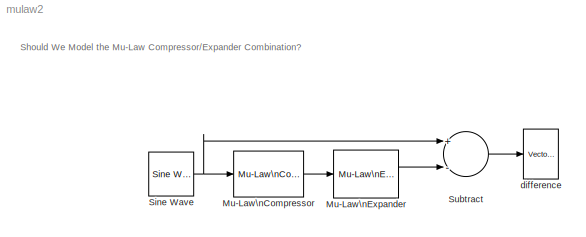
MODEL mulaw2
KIND model
BLOCK [Reference] Mu-Law\nCompressor  REF=commsrccod2/Mu-Law\nCompressor
  FunctionWithSeparateData = off
  Ports = [1, 1]
  RTWMemSecDataConstants = Inherit from model
  RTWMemSecDataInternal = Inherit from model
  RTWMemSecDataParameters = Inherit from model
  RTWMemSecFuncExecute = Inherit from model
  RTWMemSecFuncInitTerm = Inherit from model
  SID = 1
  ShowPortLabels = FromPortIcon
  SourceBlock = commsrccod2/Mu-Law\nCompressor
  SourceProductBaseCode = CM
  SourceProductName = Communications Toolbox
  SourceType = Mu-Law Compressor
  SystemSampleTime = -1
  V = 1
  mu = 255
BLOCK [Reference] Mu-Law\nExpander  REF=commsrccod2/Mu-Law\nExpander
  FunctionWithSeparateData = off
  Ports = [1, 1]
  RTWMemSecDataConstants = Inherit from model
  RTWMemSecDataInternal = Inherit from model
  RTWMemSecDataParameters = Inherit from model
  RTWMemSecFuncExecute = Inherit from model
  RTWMemSecFuncInitTerm = Inherit from model
  SID = 2
  ShowPortLabels = FromPortIcon
  SourceBlock = commsrccod2/Mu-Law\nExpander
  SourceProductBaseCode = CM
  SourceProductName = Communications Toolbox
  SourceType = Mu-Law Expander
  SystemSampleTime = -1
  V = 1
  mu = 255
BLOCK [Reference] Sine Wave  REF=dspsrcs4/Sine Wave
  Amplitude = 1
  CompMethod = Trigonometric fcn
  Frequency = 200
  OutComplex = Real
  Phase = 0
  Ports = [0, 1]
  ResetState = Restart at time zero
  SID = 3
  SampleMode = Discrete
  SampleTime = 1/8000
  SamplesPerFrame = 80
  SourceBlock = dspsrcs4/Sine Wave
  SourceProductBaseCode = DS
  SourceProductName = DSP System Toolbox
  SourceType = Sine Wave
  TableSize = Speed
  additionalParams = off
  allowOverrides = on
  dataType = double
  fracBitsMode = Best precision
  numFracBits = 15
  udDataType = sfix(16)
  wordLen = 16
BLOCK [Sum] Subtract
  InputSameDT = off
  Inputs = +-
  OutDataTypeStr = Inherit: Inherit via internal rule
  Ports = [2, 1]
  SID = 4
  SaturateOnIntegerOverflow = off
BLOCK [Reference] difference  REF=dspsnks4/Vector\nScope
  AxisGrid = on
  AxisLegend = off
  AxisProperties = off
  AxisZoom = off
  DisplayProperties = off
  Domain = Time
  FigPos = [231 308 359 191]
  FrameNumber = on
  HorizSpan = 1
  InheritXIncr = on
  LineProperties = off
  Memory = off
  OpenScopeAtSimStart = on
  OpenScopeImmediately = off
  Ports = [1]
  SID = 5
  ScopeProperties = on
  ShowPortLabels = off
  SourceBlock = dspsnks4/Vector\nScope
  SourceProductBaseCode = DS
  SourceProductName = DSP System Toolbox
  SourceType = Vector Scope
  XIncr = 1
  XLabel = Time
  XLimit = Auto
  XMax = 1
  XMin = 0
  XRange = [0...Fs/2]
  XStart = 0
  XUnits = Hertz
  YLabel = Amplitude
  YMax = 8.82072193064687e-016
  YMin = -1.32116539930394e-015
  YUnits = dB
ANNOTATION (root): Should We Model the Mu-Law Compressor/Expander Combination?
LINE Mu-Law\nCompressor:1 -> Mu-Law\nExpander:1
LINE Mu-Law\nExpander:1 -> Subtract:2
NET Sine Wave:1 -> Mu-Law\nCompressor:1, Subtract:1
LINE Subtract:1 -> difference:1
note: NET lines group one-source signal fan-out (src -> all destinations, sorted); 1:1 wires keep LINE
